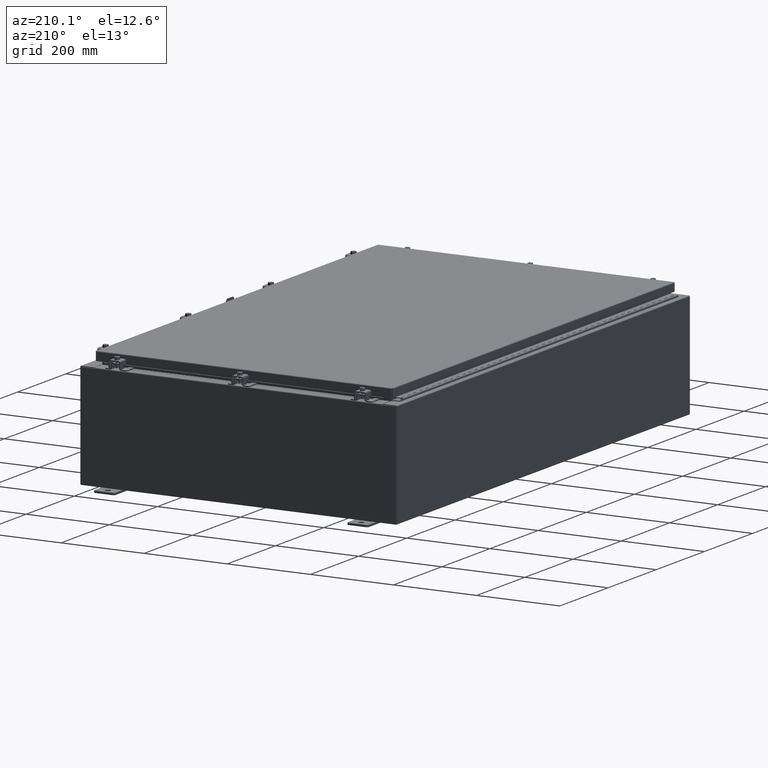
[diagram: clean part render]
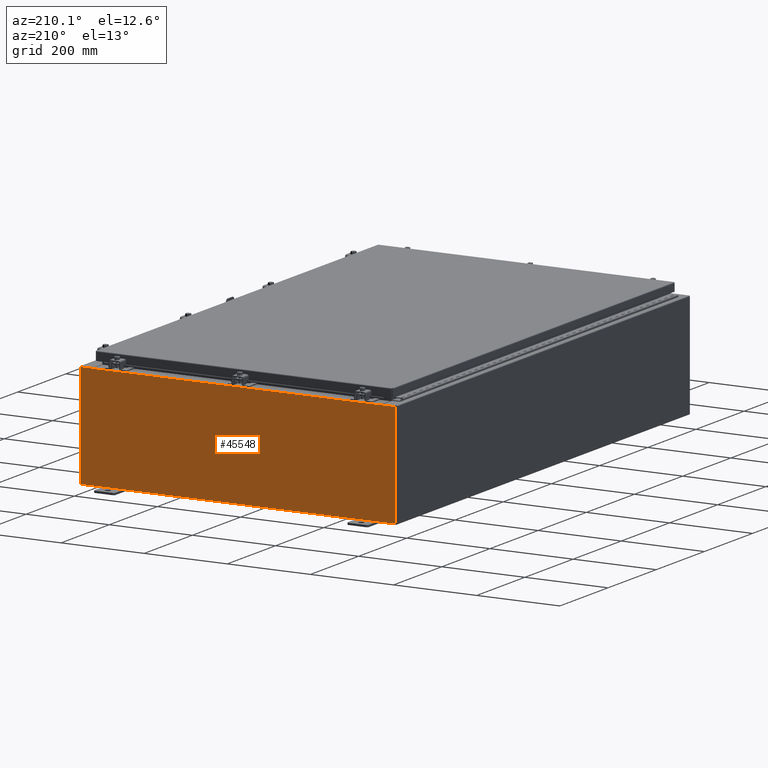
[diagram: same view with one face highlighted and labeled with its STEP entity id]
A machine part, auxiliary view. The second image highlights one B-rep face of the part: STEP entity #45548.
In plain terms, the highlighted planar face has unit normal (0, -1, 0).
Its self-contained STEP definition (entity closure, byte-faithful):
#1110 = FACE_OUTER_BOUND ( 'NONE', #41284, .T. ) ;
#1255 = EDGE_CURVE ( 'NONE', #11031, #34618, #40304, .T. ) ;
#1546 = ORIENTED_EDGE ( 'NONE', *, *, #46492, .T. ) ;
#2701 = CARTESIAN_POINT ( 'NONE',  ( 13.63719999999999800, 0.0000000000000000000, 0.0000000000000000000 ) ) ;
#3273 = VERTEX_POINT ( 'NONE', #35410 ) ;
#3536 = DIRECTION ( 'NONE',  ( 0.0000000000000000000, 0.0000000000000000000, 1.000000000000000000 ) ) ;
#3748 = ORIENTED_EDGE ( 'NONE', *, *, #13897, .F. ) ;
#4258 = EDGE_CURVE ( 'NONE', #34618, #35644, #8475, .T. ) ;
#4414 = CARTESIAN_POINT ( 'NONE',  ( 14.92529999999999800, 0.0000000000000000000, 4.925300000000000000 ) ) ;
#4959 = LINE ( 'NONE', #9636, #35834 ) ;
#6325 = ORIENTED_EDGE ( 'NONE', *, *, #28993, .T. ) ;
#8475 = LINE ( 'NONE', #13269, #19215 ) ;
#8593 = ORIENTED_EDGE ( 'NONE', *, *, #25747, .T. ) ;
#8783 = AXIS2_PLACEMENT_3D ( 'NONE', #40933, #16891, #44975 ) ;
#9144 = LINE ( 'NONE', #37858, #18600 ) ;
#9636 = CARTESIAN_POINT ( 'NONE',  ( -14.92530000000000200, 0.0000000000000000000, 4.925300000000000000 ) ) ;
#9707 = DIRECTION ( 'NONE',  ( 1.000000000000000000, 0.0000000000000000000, 0.0000000000000000000 ) ) ;
#10251 = CARTESIAN_POINT ( 'NONE',  ( 13.67454999999978500, -0.0000000000000000000, -5.935537951421795000E-013 ) ) ;
#10741 = AXIS2_PLACEMENT_3D ( 'NONE', #16613, #40813, #16778 ) ;
#11031 = VERTEX_POINT ( 'NONE', #4414 ) ;
#11462 = DIRECTION ( 'NONE',  ( 0.0000000000000000000, 0.0000000000000000000, -1.000000000000000000 ) ) ;
#11549 = ORIENTED_EDGE ( 'NONE', *, *, #17076, .F. ) ;
#11576 = CARTESIAN_POINT ( 'NONE',  ( -13.65587500000000000, 0.0000000000000000000, 4.874950000000000100 ) ) ;
#11673 = DIRECTION ( 'NONE',  ( -0.0000000000000000000, 1.000000000000000000, -0.0000000000000000000 ) ) ;
#11682 = DIRECTION ( 'NONE',  ( 0.0000000000000000000, 0.0000000000000000000, -1.000000000000000000 ) ) ;
#12029 = CARTESIAN_POINT ( 'NONE',  ( 14.92529999999999800, 0.0000000000000000000, 4.925300000000000000 ) ) ;
#12091 = AXIS2_PLACEMENT_3D ( 'NONE', #11576, #11673, #11462 ) ;
#12106 = ORIENTED_EDGE ( 'NONE', *, *, #28995, .T. ) ;
#12139 = CARTESIAN_POINT ( 'NONE',  ( -13.63720000000000000, -0.0000000000000000000, 0.0000000000000000000 ) ) ;
#12191 = DIRECTION ( 'NONE',  ( 0.0000000000000000000, 0.0000000000000000000, -1.000000000000000000 ) ) ;
#12929 = DIRECTION ( 'NONE',  ( -1.000000000000000000, -0.0000000000000000000, -0.0000000000000000000 ) ) ;
#13269 = CARTESIAN_POINT ( 'NONE',  ( -14.92530000000000200, 0.0000000000000000000, -4.925300000000000000 ) ) ;
#13897 = EDGE_CURVE ( 'NONE', #40785, #23793, #48999, .T. ) ;
#14317 = VECTOR ( 'NONE', #30932, 39.37007874015748100 ) ;
#14433 = VERTEX_POINT ( 'NONE', #40414 ) ;
#14906 = CARTESIAN_POINT ( 'NONE',  ( -14.92530000000000200, 0.0000000000000000000, 4.925300000000000000 ) ) ;
#15832 = CARTESIAN_POINT ( 'NONE',  ( 13.63719999999999800, 0.0000000000000000000, 4.874950000000000100 ) ) ;
#16574 = VERTEX_POINT ( 'NONE', #38276 ) ;
#16613 = CARTESIAN_POINT ( 'NONE',  ( 0.0000000000000000000, 0.0000000000000000000, 0.0000000000000000000 ) ) ;
#16766 = CARTESIAN_POINT ( 'NONE',  ( -13.63720000000000000, -0.0000000000000000000, 4.874950000000000100 ) ) ;
#16778 = DIRECTION ( 'NONE',  ( 0.0000000000000000000, -0.0000000000000000000, -1.000000000000000000 ) ) ;
#16891 = DIRECTION ( 'NONE',  ( -0.0000000000000000000, 1.000000000000000000, -0.0000000000000000000 ) ) ;
#17076 = EDGE_CURVE ( 'NONE', #16574, #40785, #39120, .T. ) ;
#18243 = ORIENTED_EDGE ( 'NONE', *, *, #37602, .F. ) ;
#18600 = VECTOR ( 'NONE', #41849, 39.37007874015748100 ) ;
#19215 = VECTOR ( 'NONE', #12929, 39.37007874015748100 ) ;
#20338 = VERTEX_POINT ( 'NONE', #28178 ) ;
#20895 = VERTEX_POINT ( 'NONE', #15832 ) ;
#23447 = EDGE_CURVE ( 'NONE', #3273, #30658, #24160, .T. ) ;
#23793 = VERTEX_POINT ( 'NONE', #28692 ) ;
#24160 = LINE ( 'NONE', #10251, #34837 ) ;
#25245 = ORIENTED_EDGE ( 'NONE', *, *, #38679, .F. ) ;
#25591 = CIRCLE ( 'NONE', #8783, 0.01867499999999949400 ) ;
#25747 = EDGE_CURVE ( 'NONE', #14433, #50607, #4959, .T. ) ;
#25782 = LINE ( 'NONE', #27686, #40209 ) ;
#25988 = CARTESIAN_POINT ( 'NONE',  ( -13.67455000000000000, 0.0000000000000000000, 4.925300000000000000 ) ) ;
#26276 = LINE ( 'NONE', #14906, #14317 ) ;
#27686 = CARTESIAN_POINT ( 'NONE',  ( -13.67455000000000000, -0.0000000000000000000, 0.0000000000000000000 ) ) ;
#28024 = VECTOR ( 'NONE', #9707, 39.37007874015748100 ) ;
#28178 = CARTESIAN_POINT ( 'NONE',  ( 13.63719999999999800, 0.0000000000000000000, 4.912300000000000100 ) ) ;
#28692 = CARTESIAN_POINT ( 'NONE',  ( -13.67455000000000000, 0.0000000000000000000, 4.874950000000000100 ) ) ;
#28993 = EDGE_CURVE ( 'NONE', #3273, #11031, #49429, .T. ) ;
#28995 = EDGE_CURVE ( 'NONE', #16574, #20338, #9144, .T. ) ;
#29778 = CARTESIAN_POINT ( 'NONE',  ( -14.92530000000000200, 0.0000000000000000000, 4.925300000000000000 ) ) ;
#30658 = VERTEX_POINT ( 'NONE', #41312 ) ;
#30932 = DIRECTION ( 'NONE',  ( -0.0000000000000000000, -0.0000000000000000000, 1.000000000000000000 ) ) ;
#34346 = DIRECTION ( 'NONE',  ( -4.340572780400004900E-014, 0.0000000000000000000, -1.000000000000000000 ) ) ;
#34618 = VERTEX_POINT ( 'NONE', #38981 ) ;
#34837 = VECTOR ( 'NONE', #34346, 39.37007874015748100 ) ;
#35410 = CARTESIAN_POINT ( 'NONE',  ( 13.67455000000000000, 0.0000000000000000000, 4.925300000000000000 ) ) ;
#35644 = VERTEX_POINT ( 'NONE', #46589 ) ;
#35834 = VECTOR ( 'NONE', #37782, 39.37007874015748100 ) ;
#36825 = PLANE ( 'NONE',  #10741 ) ;
#37238 = ORIENTED_EDGE ( 'NONE', *, *, #39507, .F. ) ;
#37602 = EDGE_CURVE ( 'NONE', #23793, #50607, #25782, .T. ) ;
#37782 = DIRECTION ( 'NONE',  ( 1.000000000000000000, 0.0000000000000000000, 0.0000000000000000000 ) ) ;
#37854 = ORIENTED_EDGE ( 'NONE', *, *, #1255, .T. ) ;
#37858 = CARTESIAN_POINT ( 'NONE',  ( -13.63720000000000400, -7.171100983368691200E-016, 4.912300000000000100 ) ) ;
#38276 = CARTESIAN_POINT ( 'NONE',  ( -13.63720000000000000, -7.171100983368691200E-016, 4.912300000000000100 ) ) ;
#38679 = EDGE_CURVE ( 'NONE', #20895, #20338, #50186, .T. ) ;
#38981 = CARTESIAN_POINT ( 'NONE',  ( 14.92529999999999800, 0.0000000000000000000, -4.925300000000000000 ) ) ;
#39120 = LINE ( 'NONE', #12139, #49842 ) ;
#39465 = VECTOR ( 'NONE', #47061, 39.37007874015748100 ) ;
#39507 = EDGE_CURVE ( 'NONE', #30658, #20895, #25591, .T. ) ;
#40209 = VECTOR ( 'NONE', #3536, 39.37007874015748100 ) ;
#40304 = LINE ( 'NONE', #12029, #51026 ) ;
#40414 = CARTESIAN_POINT ( 'NONE',  ( -14.92530000000000200, 0.0000000000000000000, 4.925300000000000000 ) ) ;
#40785 = VERTEX_POINT ( 'NONE', #16766 ) ;
#40813 = DIRECTION ( 'NONE',  ( 0.0000000000000000000, -1.000000000000000000, 0.0000000000000000000 ) ) ;
#40933 = CARTESIAN_POINT ( 'NONE',  ( 13.65587499999999800, 0.0000000000000000000, 4.874950000000000100 ) ) ;
#41284 = EDGE_LOOP ( 'NONE', ( #18243, #3748, #11549, #12106, #25245, #37238, #48542, #6325, #37854, #45224, #1546, #8593 ) ) ;
#41312 = CARTESIAN_POINT ( 'NONE',  ( 13.67454999999999800, 0.0000000000000000000, 4.874950000000000100 ) ) ;
#41849 = DIRECTION ( 'NONE',  ( 1.000000000000000000, 0.0000000000000000000, 0.0000000000000000000 ) ) ;
#44975 = DIRECTION ( 'NONE',  ( 0.0000000000000000000, 0.0000000000000000000, -1.000000000000000000 ) ) ;
#45224 = ORIENTED_EDGE ( 'NONE', *, *, #4258, .T. ) ;
#45548 = ADVANCED_FACE ( 'NONE', ( #1110 ), #36825, .F. ) ;
#46492 = EDGE_CURVE ( 'NONE', #35644, #14433, #26276, .T. ) ;
#46589 = CARTESIAN_POINT ( 'NONE',  ( -14.92530000000000200, 0.0000000000000000000, -4.925300000000000000 ) ) ;
#47061 = DIRECTION ( 'NONE',  ( 0.0000000000000000000, 0.0000000000000000000, 1.000000000000000000 ) ) ;
#48542 = ORIENTED_EDGE ( 'NONE', *, *, #23447, .F. ) ;
#48999 = CIRCLE ( 'NONE', #12091, 0.01867499999999949400 ) ;
#49429 = LINE ( 'NONE', #29778, #28024 ) ;
#49842 = VECTOR ( 'NONE', #12191, 39.37007874015748100 ) ;
#50186 = LINE ( 'NONE', #2701, #39465 ) ;
#50607 = VERTEX_POINT ( 'NONE', #25988 ) ;
#51026 = VECTOR ( 'NONE', #11682, 39.37007874015748100 ) ;